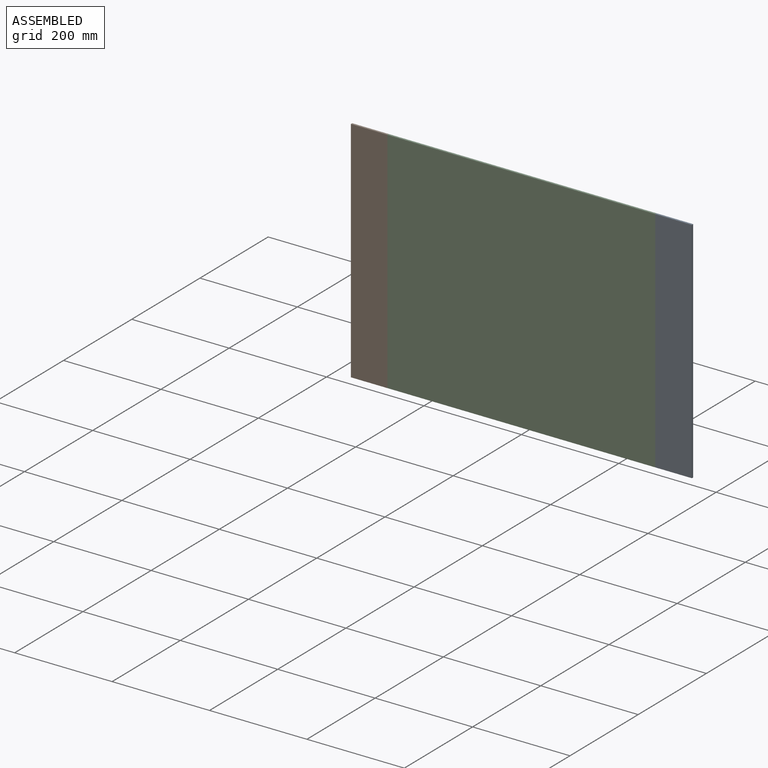
[diagram: assembled view]
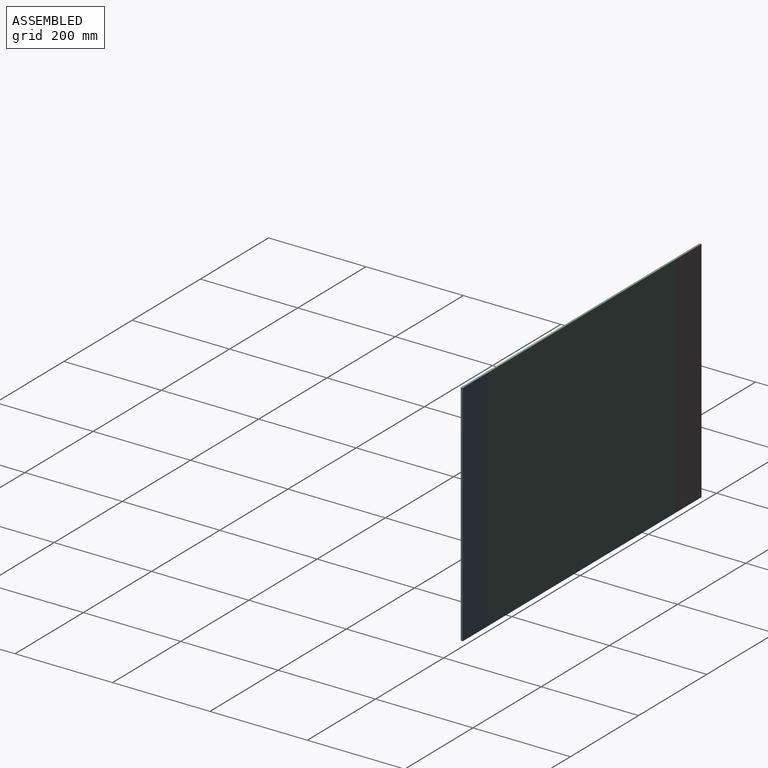
[diagram: assembled view, second angle]
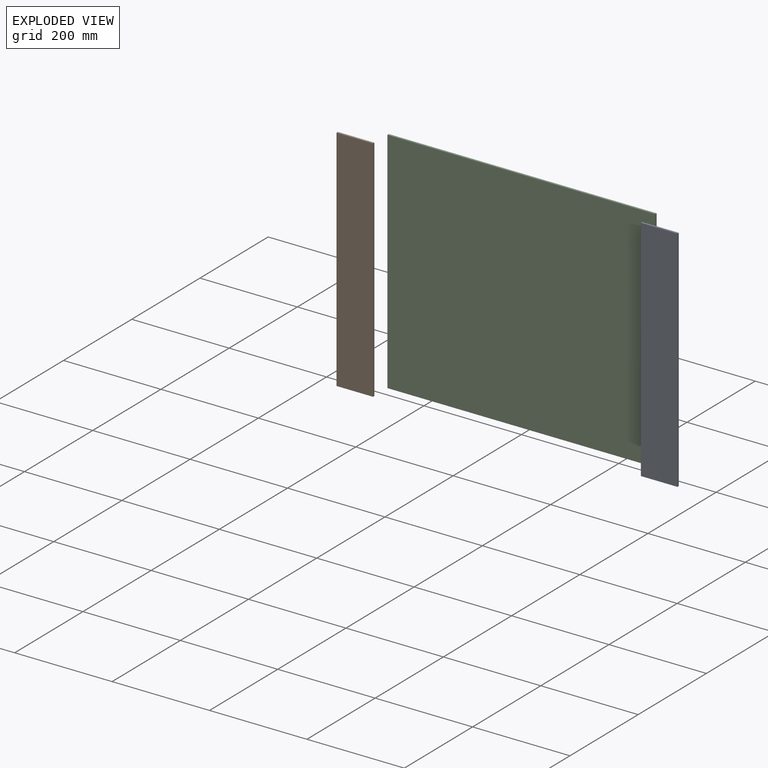
[diagram: exploded view]
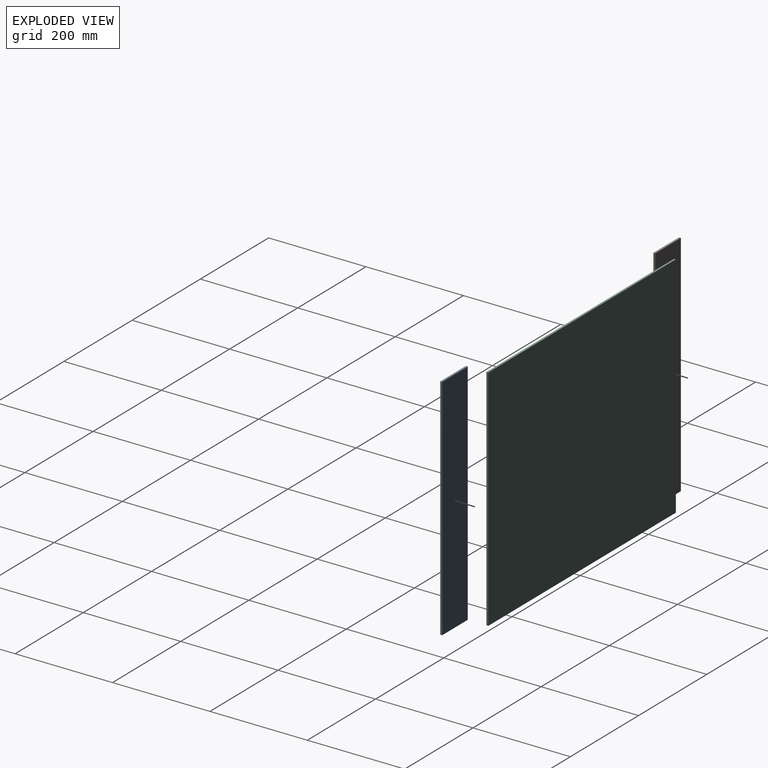
[diagram: exploded view, second angle]
ASSEMBLY  parts=3 mates=2
PART A: 6 faces, bbox 75x4x470 mm
  f0: plane 75x4mm, normal (0,0,1), area 300mm2, adj f1,f3,f4,f5
  f1: plane 470x4mm, normal (-1,0,0), area 1880mm2, adj f0,f2,f4,f5
  f2: plane 75x4mm, normal (0,0,-1), area 300mm2, adj f1,f3,f4,f5
  f3: plane 470x4mm, normal (1,0,0), area 1880mm2, adj f0,f2,f4,f5
  f4: plane 470x75mm, normal (0,1,0), area 35250mm2, adj f0,f1,f2,f3
  f5: plane 470x75mm, normal (0,-1,0), area 35250mm2, adj f0,f1,f2,f3
PART B: 6 faces, bbox 75x4x470 mm
  f0: plane 75x4mm, normal (0,0,1), area 300mm2, adj f1,f3,f4,f5
  f1: plane 470x4mm, normal (-1,0,0), area 1880mm2, adj f0,f2,f4,f5
  f2: plane 75x4mm, normal (0,0,-1), area 300mm2, adj f1,f3,f4,f5
  f3: plane 470x4mm, normal (1,0,0), area 1880mm2, adj f0,f2,f4,f5
  f4: plane 470x75mm, normal (0,1,0), area 35250mm2, adj f0,f1,f2,f3
  f5: plane 470x75mm, normal (0,-1,0), area 35250mm2, adj f0,f1,f2,f3
PART C: 6 faces, bbox 550x4x470 mm
  f0: plane 550x4mm, normal (0,0,1), area 2200mm2, adj f1,f3,f4,f5
  f1: plane 470x4mm, normal (-1,0,0), area 1880mm2, adj f0,f2,f4,f5
  f2: plane 550x4mm, normal (0,0,-1), area 2200mm2, adj f1,f3,f4,f5
  f3: plane 470x4mm, normal (1,0,0), area 1880mm2, adj f0,f2,f4,f5
  f4: plane 550x470mm, normal (0,1,0), area 258500mm2, adj f0,f1,f2,f3
  f5: plane 550x470mm, normal (0,-1,0), area 258500mm2, adj f0,f1,f2,f3
PLACE A at identity
PLACE B at identity
PLACE C at identity
MATE fastened A.f5 <-> C.f5  axis (0,-1,0) through (275,0,235)mm
MATE fastened B.f5 <-> C.f5  axis (0,-1,0) through (-275,0,235)mm
